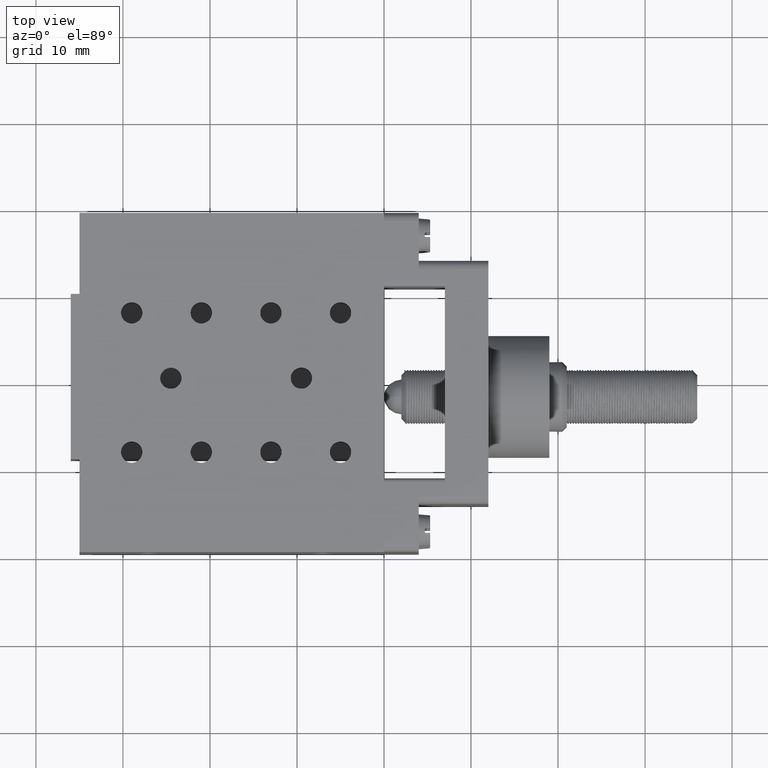
[diagram: clean part render]
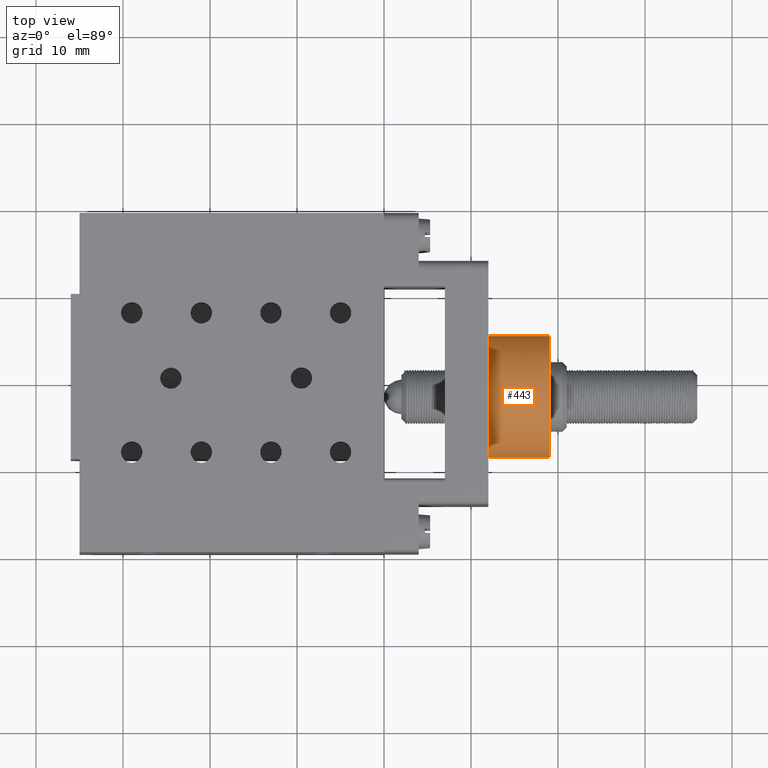
[diagram: same view with one face highlighted and labeled with its STEP entity id]
A machine part, top view. The second image highlights one B-rep face of the part: STEP entity #443.
In plain terms, the highlighted cylindrical surface (partial cylindrical patch) has radius 7 mm, axis along (-1, -0, 0).
Its self-contained STEP definition (entity closure, byte-faithful):
#443=ADVANCED_FACE('',(#1029),#8314,.T.);
#1029=FACE_OUTER_BOUND('',#1606,.T.);
#1606=EDGE_LOOP('',(#4062,#4063,#4064,#4065));
#4062=ORIENTED_EDGE('',*,*,#5884,.T.);
#4063=ORIENTED_EDGE('',*,*,#5730,.F.);
#4064=ORIENTED_EDGE('',*,*,#5611,.F.);
#4065=ORIENTED_EDGE('',*,*,#5729,.T.);
#5611=EDGE_CURVE('',#7962,#7956,#7194,.T.);
#5729=EDGE_CURVE('',#7962,#8083,#6249,.T.);
#5730=EDGE_CURVE('',#7956,#8084,#6250,.T.);
#5884=EDGE_CURVE('',#8083,#8084,#7292,.T.);
#6249=(
BOUNDED_CURVE()
B_SPLINE_CURVE(2,(#43660,#43661,#43662,#43663,#43664),.UNSPECIFIED.,.F.,
 .F.)
B_SPLINE_CURVE_WITH_KNOTS((3,2,3),(17.3225241636026,28.3180984511667,39.3136727387308),
 .UNSPECIFIED.)
CURVE()
GEOMETRIC_REPRESENTATION_ITEM()
RATIONAL_B_SPLINE_CURVE((1.,0.707106781186548,1.,0.707106781186548,1.))
REPRESENTATION_ITEM('')
);
#6250=(
BOUNDED_CURVE()
B_SPLINE_CURVE(2,(#43665,#43666,#43667,#43668,#43669,#43670,#43671),
 .UNSPECIFIED.,.F.,.F.)
B_SPLINE_CURVE_WITH_KNOTS((3,2,2,3),(-17.3225241636021,-8.66126208180105,
-4.44089209850063E-16,4.66862441152567),.UNSPECIFIED.)
CURVE()
GEOMETRIC_REPRESENTATION_ITEM()
RATIONAL_B_SPLINE_CURVE((1.,0.814655398114442,1.,0.814655398114442,1.,0.944911182523064,
1.))
REPRESENTATION_ITEM('')
);
#7194=B_SPLINE_CURVE_WITH_KNOTS('',1,(#42658,#42659),.UNSPECIFIED.,.F.,
 .F.,(2,2),(0.820000000000093,7.82000000000051),.UNSPECIFIED.);
#7292=B_SPLINE_CURVE_WITH_KNOTS('',1,(#44538,#44539),.UNSPECIFIED.,.F.,
 .F.,(2,2),(0.820000000000089,7.8200000000001),.UNSPECIFIED.);
#7956=VERTEX_POINT('',#28822);
#7962=VERTEX_POINT('',#28828);
#8083=VERTEX_POINT('',#28949);
#8084=VERTEX_POINT('',#28950);
#8314=CYLINDRICAL_SURFACE('',#8950,6.99999999999999);
#8950=AXIS2_PLACEMENT_3D('',#27616,#9351,$);
#9351=DIRECTION('',(-1.,-3.15544362088406E-29,3.55271367880051E-15));
#27616=CARTESIAN_POINT('',(15.5000008107585,-1.49999999446847,10.0000455395508));
#28822=CARTESIAN_POINT('',(12.0000008107583,-8.49999999446798,10.0000455395508));
#28828=CARTESIAN_POINT('',(19.0000008107588,-8.49999999446829,10.0000455395508));
#28949=CARTESIAN_POINT('',(19.0000008107587,5.50000000553153,10.0000455395509));
#28950=CARTESIAN_POINT('',(12.0000008107588,5.50000000553153,10.0000455395509));
#42658=CARTESIAN_POINT('',(19.0000008107588,-8.49999999446829,10.0000455395508));
#42659=CARTESIAN_POINT('',(12.0000008107583,-8.49999999446798,10.0000455395508));
#43660=CARTESIAN_POINT('',(19.0000008107588,-8.49999999446829,10.0000455395508));
#43661=CARTESIAN_POINT('',(19.0000008107588,-8.49999999446835,17.0000455395507));
#43662=CARTESIAN_POINT('',(19.0000008107588,-1.49999999446845,17.0000455395507));
#43663=CARTESIAN_POINT('',(19.0000008107588,5.50000000553146,17.0000455395508));
#43664=CARTESIAN_POINT('',(19.0000008107588,5.50000000553153,10.0000455395509));
#43665=CARTESIAN_POINT('',(12.0000008107583,-8.49999999446798,10.0000455395508));
#43666=CARTESIAN_POINT('',(12.0000008107584,-8.49999999446802,14.983278079935));
#43667=CARTESIAN_POINT('',(12.0000008107586,-3.79128784194621,16.614423817212));
#43668=CARTESIAN_POINT('',(12.0000008107587,0.917424310575593,18.2455695544891));
#43669=CARTESIAN_POINT('',(12.0000008107587,4.00000000553142,14.3301725584731));
#43670=CARTESIAN_POINT('',(12.0000008107588,5.5000000055315,12.4249166701474));
#43671=CARTESIAN_POINT('',(12.0000008107588,5.50000000553153,10.0000455395509));
#44538=CARTESIAN_POINT('',(19.0000008107588,5.50000000553152,10.0000455395509));
#44539=CARTESIAN_POINT('',(12.0000008107587,5.50000000553151,10.0000455395509));